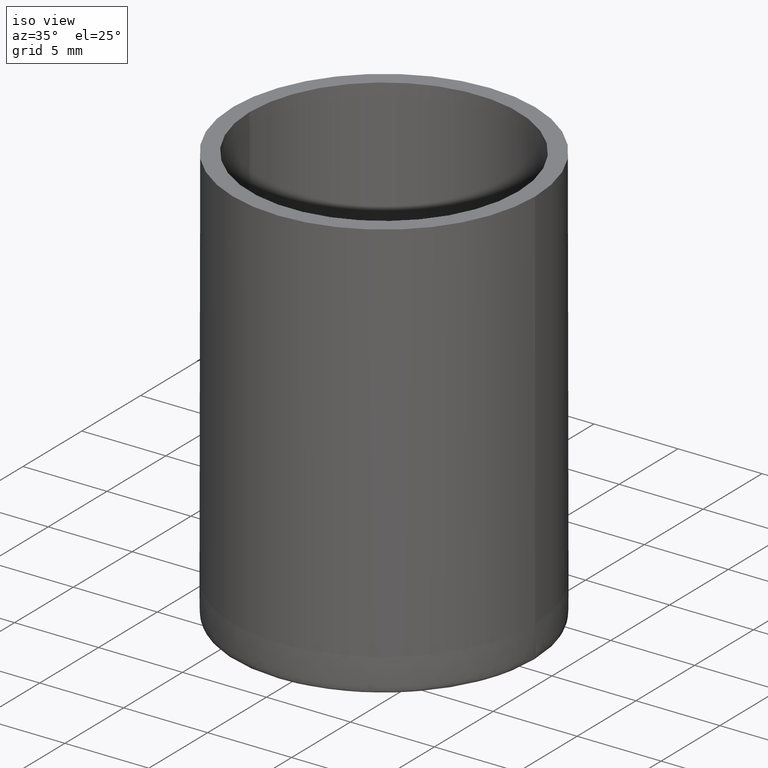
[diagram: clean part render]
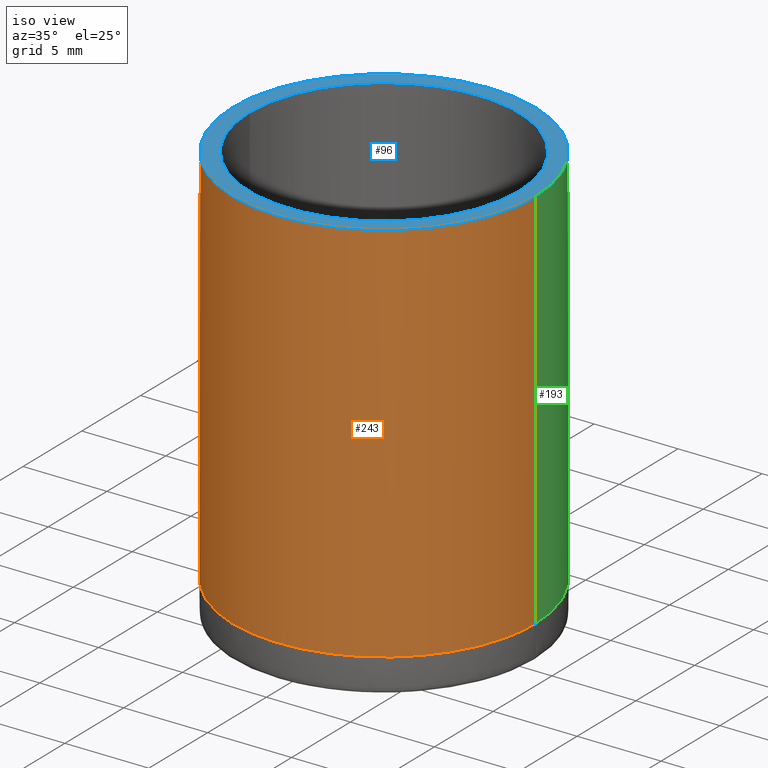
[diagram: same view with three faces highlighted in distinct colors, each labeled with its STEP entity id]
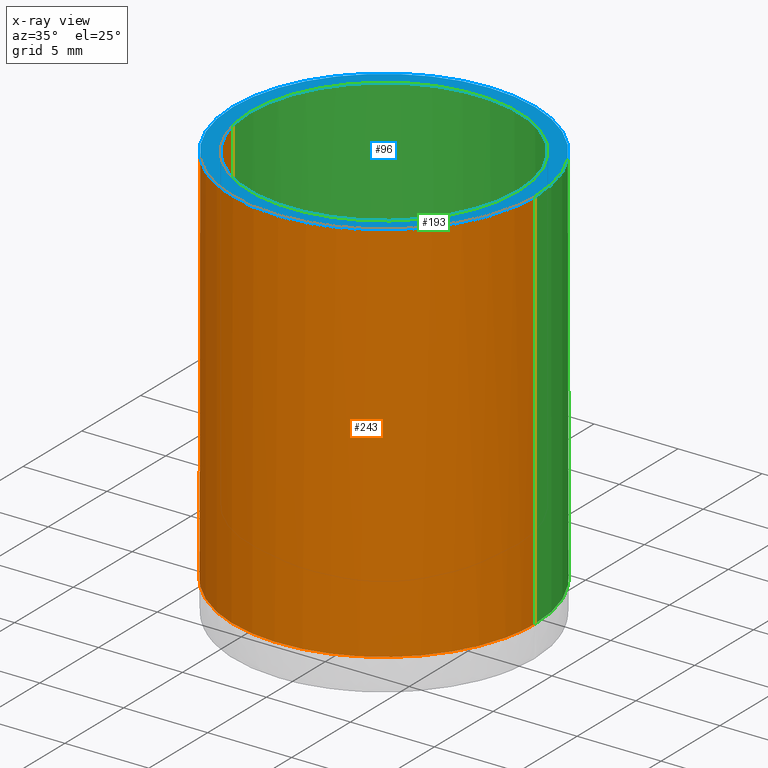
[diagram: x-ray of the same camera — body ghosted, the three highlighted faces saturated]
A machine part, iso view with three faces highlighted in distinct colors.
The next image is the same camera in x-ray (body ghosted, the three faces saturated) — at least one of them is partly hidden behind the body in this view.
Their STEP definitions:

[orange] entity #243 — the highlighted cylindrical surface (partial cylindrical patch) has radius 9 mm, axis along (-0, -0, -1).
#82 = CARTESIAN_POINT ( 'NONE',  ( 9.000000000000000000, 5.510910596163088600E-016, 2.000000000000001800 ) ) ;
#88 = CARTESIAN_POINT ( 'NONE',  ( -1.178097245096173100, -9.000000000000000000, 2.000000000000001800 ) ) ;
#90 = CARTESIAN_POINT ( 'NONE',  ( -4.532570823338096100, -7.864077495188321400, 2.000000000000001800 ) ) ;
#122 = VERTEX_POINT ( 'NONE', #82 ) ;
#124 = EDGE_CURVE ( 'NONE', #371, #455, #169, .T. ) ;
#137 = CARTESIAN_POINT ( 'NONE',  ( 7.197001581583623200, -5.530920479774233700, 2.000000000000002200 ) ) ;
#140 = CARTESIAN_POINT ( 'NONE',  ( 9.000000000000000000, -1.178097245096174200, 2.000000000000001800 ) ) ;
#169 = LINE ( 'NONE', #273, #533 ) ;
#180 = CARTESIAN_POINT ( 'NONE',  ( -8.765754090014841200, -2.355730959233521800, 2.000000000000002200 ) ) ;
#187 = DIRECTION ( 'NONE',  ( 1.000000000000000000, 0.0000000000000000000, 0.0000000000000000000 ) ) ;
#196 = CARTESIAN_POINT ( 'NONE',  ( -9.000000000000000000, 5.421010862427522200E-016, 2.000000000000001800 ) ) ;
#215 = CARTESIAN_POINT ( 'NONE',  ( 0.0000000000000000000, 0.0000000000000000000, 25.00000000000000000 ) ) ;
#220 = EDGE_CURVE ( 'NONE', #371, #613, #385, .T. ) ;
#223 = CARTESIAN_POINT ( 'NONE',  ( 0.0000000000000000000, 0.0000000000000000000, 25.00000000000000000 ) ) ;
#233 = CARTESIAN_POINT ( 'NONE',  ( -2.355730959233523200, -8.765754090014834100, 2.000000000000001300 ) ) ;
#239 = ORIENTED_EDGE ( 'NONE', *, *, #349, .T. ) ;
#242 = DIRECTION ( 'NONE',  ( -0.0000000000000000000, -0.0000000000000000000, -1.000000000000000000 ) ) ;
#243 = ADVANCED_FACE ( 'NONE', ( #446 ), #397, .T. ) ;
#267 = B_SPLINE_CURVE_WITH_KNOTS ( 'NONE', 3,
 ( #412, #529, #180, #468, #527, #562, #90, #233, #88, #568, #410, #283, #611, #137, #608, #417, #140, #327 ),
 .UNSPECIFIED., .F., .F.,
 ( 4, 2, 2, 2, 2, 2, 2, 2, 4 ),
 ( 0.5000000000000000000, 0.5625000000000000000, 0.6249999999999998900, 0.6874999999999998900, 0.7499999999999998900, 0.8124999999999998900, 0.8749999999999998900, 0.9375000000000000000, 1.000000000000000000 ),
 .UNSPECIFIED. ) ;
#273 = CARTESIAN_POINT ( 'NONE',  ( -9.000000000000000000, 0.0000000000000000000, 25.00000000000000000 ) ) ;
#275 = CARTESIAN_POINT ( 'NONE',  ( -9.000000000000000000, 0.0000000000000000000, 25.00000000000000000 ) ) ;
#283 = CARTESIAN_POINT ( 'NONE',  ( 4.532570823338094400, -7.864077495188321400, 2.000000000000001800 ) ) ;
#327 = CARTESIAN_POINT ( 'NONE',  ( 9.000000000000000000, 5.510910596163088600E-016, 2.000000000000001800 ) ) ;
#335 = AXIS2_PLACEMENT_3D ( 'NONE', #215, #360, #187 ) ;
#346 = VECTOR ( 'NONE', #242, 1000.000000000000000 ) ;
#349 = EDGE_CURVE ( 'NONE', #455, #122, #267, .T. ) ;
#360 = DIRECTION ( 'NONE',  ( 0.0000000000000000000, 0.0000000000000000000, 1.000000000000000000 ) ) ;
#371 = VERTEX_POINT ( 'NONE', #275 ) ;
#385 = CIRCLE ( 'NONE', #335, 9.000000000000000000 ) ;
#397 = CYLINDRICAL_SURFACE ( 'NONE', #400, 9.000000000000000000 ) ;
#400 = AXIS2_PLACEMENT_3D ( 'NONE', #223, #604, #408 ) ;
#408 = DIRECTION ( 'NONE',  ( -1.000000000000000000, 0.0000000000000000000, 0.0000000000000000000 ) ) ;
#409 = DIRECTION ( 'NONE',  ( -0.0000000000000000000, -0.0000000000000000000, -1.000000000000000000 ) ) ;
#410 = CARTESIAN_POINT ( 'NONE',  ( 2.355730959233521800, -8.765754090014839400, 2.000000000000001800 ) ) ;
#412 = CARTESIAN_POINT ( 'NONE',  ( -9.000000000000000000, 5.421010862427522200E-016, 2.000000000000001800 ) ) ;
#417 = CARTESIAN_POINT ( 'NONE',  ( 8.765754090014835900, -2.355730959233524900, 2.000000000000001300 ) ) ;
#430 = EDGE_LOOP ( 'NONE', ( #607, #598, #457, #239 ) ) ;
#443 = CARTESIAN_POINT ( 'NONE',  ( 9.000000000000000000, 1.102182119232617700E-015, 25.00000000000000000 ) ) ;
#446 = FACE_OUTER_BOUND ( 'NONE', #430, .T. ) ;
#455 = VERTEX_POINT ( 'NONE', #196 ) ;
#457 = ORIENTED_EDGE ( 'NONE', *, *, #124, .T. ) ;
#468 = CARTESIAN_POINT ( 'NONE',  ( -7.864077495188323200, -4.532570823338094400, 2.000000000000002200 ) ) ;
#473 = EDGE_CURVE ( 'NONE', #613, #122, #591, .T. ) ;
#527 = CARTESIAN_POINT ( 'NONE',  ( -7.197001581583623200, -5.530920479774233700, 2.000000000000002200 ) ) ;
#529 = CARTESIAN_POINT ( 'NONE',  ( -9.000000000000001800, -1.178097245096172600, 2.000000000000001800 ) ) ;
#531 = CARTESIAN_POINT ( 'NONE',  ( 9.000000000000000000, 1.102182119232617700E-015, 25.00000000000000000 ) ) ;
#533 = VECTOR ( 'NONE', #409, 1000.000000000000000 ) ;
#562 = CARTESIAN_POINT ( 'NONE',  ( -5.530920479774233700, -7.197001581583620600, 2.000000000000001300 ) ) ;
#568 = CARTESIAN_POINT ( 'NONE',  ( 1.178097245096170900, -8.999999999999998200, 2.000000000000001300 ) ) ;
#591 = LINE ( 'NONE', #531, #346 ) ;
#598 = ORIENTED_EDGE ( 'NONE', *, *, #220, .F. ) ;
#604 = DIRECTION ( 'NONE',  ( -0.0000000000000000000, -0.0000000000000000000, -1.000000000000000000 ) ) ;
#607 = ORIENTED_EDGE ( 'NONE', *, *, #473, .F. ) ;
#608 = CARTESIAN_POINT ( 'NONE',  ( 7.864077495188316100, -4.532570823338099700, 2.000000000000001800 ) ) ;
#611 = CARTESIAN_POINT ( 'NONE',  ( 5.530920479774233700, -7.197001581583622400, 2.000000000000001800 ) ) ;
#613 = VERTEX_POINT ( 'NONE', #443 ) ;

[blue] entity #96 — the highlighted planar face has unit normal (0, 0, 1).
#8 = AXIS2_PLACEMENT_3D ( 'NONE', #466, #321, #520 ) ;
#14 = EDGE_LOOP ( 'NONE', ( #491, #141 ) ) ;
#34 = DIRECTION ( 'NONE',  ( 1.000000000000000000, 0.0000000000000000000, -0.0000000000000000000 ) ) ;
#96 = ADVANCED_FACE ( 'NONE', ( #270, #148 ), #227, .T. ) ;
#107 = CIRCLE ( 'NONE', #588, 8.000000000000000000 ) ;
#115 = EDGE_LOOP ( 'NONE', ( #347, #558 ) ) ;
#126 = DIRECTION ( 'NONE',  ( 1.000000000000000000, 0.0000000000000000000, 0.0000000000000000000 ) ) ;
#141 = ORIENTED_EDGE ( 'NONE', *, *, #436, .T. ) ;
#148 = FACE_BOUND ( 'NONE', #115, .T. ) ;
#155 = CIRCLE ( 'NONE', #510, 9.000000000000000000 ) ;
#161 = VERTEX_POINT ( 'NONE', #407 ) ;
#187 = DIRECTION ( 'NONE',  ( 1.000000000000000000, 0.0000000000000000000, 0.0000000000000000000 ) ) ;
#205 = EDGE_CURVE ( 'NONE', #161, #218, #107, .T. ) ;
#215 = CARTESIAN_POINT ( 'NONE',  ( 0.0000000000000000000, 0.0000000000000000000, 25.00000000000000000 ) ) ;
#218 = VERTEX_POINT ( 'NONE', #226 ) ;
#220 = EDGE_CURVE ( 'NONE', #371, #613, #385, .T. ) ;
#226 = CARTESIAN_POINT ( 'NONE',  ( -8.000000000000000000, 0.0000000000000000000, 25.00000000000000000 ) ) ;
#227 = PLANE ( 'NONE',  #502 ) ;
#240 = CARTESIAN_POINT ( 'NONE',  ( 0.0000000000000000000, 0.0000000000000000000, 25.00000000000000000 ) ) ;
#270 = FACE_OUTER_BOUND ( 'NONE', #14, .T. ) ;
#275 = CARTESIAN_POINT ( 'NONE',  ( -9.000000000000000000, 0.0000000000000000000, 25.00000000000000000 ) ) ;
#285 = DIRECTION ( 'NONE',  ( 0.0000000000000000000, 0.0000000000000000000, 1.000000000000000000 ) ) ;
#319 = DIRECTION ( 'NONE',  ( 0.0000000000000000000, 0.0000000000000000000, 1.000000000000000000 ) ) ;
#321 = DIRECTION ( 'NONE',  ( -0.0000000000000000000, -0.0000000000000000000, -1.000000000000000000 ) ) ;
#330 = CIRCLE ( 'NONE', #8, 8.000000000000000000 ) ;
#335 = AXIS2_PLACEMENT_3D ( 'NONE', #215, #360, #187 ) ;
#347 = ORIENTED_EDGE ( 'NONE', *, *, #373, .T. ) ;
#360 = DIRECTION ( 'NONE',  ( 0.0000000000000000000, 0.0000000000000000000, 1.000000000000000000 ) ) ;
#371 = VERTEX_POINT ( 'NONE', #275 ) ;
#373 = EDGE_CURVE ( 'NONE', #218, #161, #330, .T. ) ;
#385 = CIRCLE ( 'NONE', #335, 9.000000000000000000 ) ;
#403 = CARTESIAN_POINT ( 'NONE',  ( 4.214760313489563600E-017, 0.0000000000000000000, 25.00000000000000000 ) ) ;
#407 = CARTESIAN_POINT ( 'NONE',  ( 8.000000000000000000, 9.797174393178825700E-016, 25.00000000000000000 ) ) ;
#436 = EDGE_CURVE ( 'NONE', #613, #371, #155, .T. ) ;
#443 = CARTESIAN_POINT ( 'NONE',  ( 9.000000000000000000, 1.102182119232617700E-015, 25.00000000000000000 ) ) ;
#462 = CARTESIAN_POINT ( 'NONE',  ( 0.0000000000000000000, 0.0000000000000000000, 25.00000000000000000 ) ) ;
#466 = CARTESIAN_POINT ( 'NONE',  ( 4.214760313489563600E-017, 0.0000000000000000000, 25.00000000000000000 ) ) ;
#491 = ORIENTED_EDGE ( 'NONE', *, *, #220, .T. ) ;
#502 = AXIS2_PLACEMENT_3D ( 'NONE', #462, #319, #34 ) ;
#510 = AXIS2_PLACEMENT_3D ( 'NONE', #240, #285, #571 ) ;
#514 = DIRECTION ( 'NONE',  ( -0.0000000000000000000, -0.0000000000000000000, -1.000000000000000000 ) ) ;
#520 = DIRECTION ( 'NONE',  ( 1.000000000000000000, 0.0000000000000000000, 0.0000000000000000000 ) ) ;
#558 = ORIENTED_EDGE ( 'NONE', *, *, #205, .T. ) ;
#571 = DIRECTION ( 'NONE',  ( 1.000000000000000000, 0.0000000000000000000, 0.0000000000000000000 ) ) ;
#588 = AXIS2_PLACEMENT_3D ( 'NONE', #403, #514, #126 ) ;
#613 = VERTEX_POINT ( 'NONE', #443 ) ;

[green] entity #193 — the highlighted cylindrical surface (partial cylindrical patch) has radius 9 mm, axis along (-0, -0, -1).
#12 = CARTESIAN_POINT ( 'NONE',  ( 7.864077495188316100, 4.532570823338097900, 2.000000000000001800 ) ) ;
#50 = CARTESIAN_POINT ( 'NONE',  ( 5.530920479774233700, 7.197001581583620600, 2.000000000000001800 ) ) ;
#55 = ORIENTED_EDGE ( 'NONE', *, *, #436, .F. ) ;
#79 = ORIENTED_EDGE ( 'NONE', *, *, #473, .T. ) ;
#82 = CARTESIAN_POINT ( 'NONE',  ( 9.000000000000000000, 5.510910596163088600E-016, 2.000000000000001800 ) ) ;
#92 = CARTESIAN_POINT ( 'NONE',  ( -8.999999999999998200, 1.178097245096171100, 2.000000000000001800 ) ) ;
#108 = EDGE_LOOP ( 'NONE', ( #55, #79, #191, #526 ) ) ;
#122 = VERTEX_POINT ( 'NONE', #82 ) ;
#124 = EDGE_CURVE ( 'NONE', #371, #455, #169, .T. ) ;
#146 = CARTESIAN_POINT ( 'NONE',  ( 2.355730959233521400, 8.765754090014837600, 2.000000000000001300 ) ) ;
#155 = CIRCLE ( 'NONE', #510, 9.000000000000000000 ) ;
#169 = LINE ( 'NONE', #273, #533 ) ;
#178 = B_SPLINE_CURVE_WITH_KNOTS ( 'NONE', 3,
 ( #615, #325, #579, #12, #194, #50, #374, #146, #487, #481, #248, #190, #376, #484, #572, #576, #92, #532 ),
 .UNSPECIFIED., .F., .F.,
 ( 4, 2, 2, 2, 2, 2, 2, 2, 4 ),
 ( 0.0000000000000000000, 0.06250000000000005600, 0.1250000000000001100, 0.1875000000000001100, 0.2500000000000001100, 0.3125000000000001100, 0.3750000000000001100, 0.4375000000000000600, 0.5000000000000000000 ),
 .UNSPECIFIED. ) ;
#184 = FACE_OUTER_BOUND ( 'NONE', #108, .T. ) ;
#190 = CARTESIAN_POINT ( 'NONE',  ( -4.532570823338096100, 7.864077495188319700, 2.000000000000001300 ) ) ;
#191 = ORIENTED_EDGE ( 'NONE', *, *, #451, .T. ) ;
#193 = ADVANCED_FACE ( 'NONE', ( #184 ), #315, .T. ) ;
#194 = CARTESIAN_POINT ( 'NONE',  ( 7.197001581583618800, 5.530920479774234600, 2.000000000000001800 ) ) ;
#196 = CARTESIAN_POINT ( 'NONE',  ( -9.000000000000000000, 5.421010862427522200E-016, 2.000000000000001800 ) ) ;
#198 = AXIS2_PLACEMENT_3D ( 'NONE', #560, #465, #317 ) ;
#240 = CARTESIAN_POINT ( 'NONE',  ( 0.0000000000000000000, 0.0000000000000000000, 25.00000000000000000 ) ) ;
#242 = DIRECTION ( 'NONE',  ( -0.0000000000000000000, -0.0000000000000000000, -1.000000000000000000 ) ) ;
#248 = CARTESIAN_POINT ( 'NONE',  ( -2.355730959233523600, 8.765754090014837600, 2.000000000000001800 ) ) ;
#273 = CARTESIAN_POINT ( 'NONE',  ( -9.000000000000000000, 0.0000000000000000000, 25.00000000000000000 ) ) ;
#275 = CARTESIAN_POINT ( 'NONE',  ( -9.000000000000000000, 0.0000000000000000000, 25.00000000000000000 ) ) ;
#285 = DIRECTION ( 'NONE',  ( 0.0000000000000000000, 0.0000000000000000000, 1.000000000000000000 ) ) ;
#315 = CYLINDRICAL_SURFACE ( 'NONE', #198, 9.000000000000000000 ) ;
#317 = DIRECTION ( 'NONE',  ( -1.000000000000000000, 0.0000000000000000000, 0.0000000000000000000 ) ) ;
#325 = CARTESIAN_POINT ( 'NONE',  ( 9.000000000000001800, 1.178097245096173800, 2.000000000000002700 ) ) ;
#346 = VECTOR ( 'NONE', #242, 1000.000000000000000 ) ;
#371 = VERTEX_POINT ( 'NONE', #275 ) ;
#374 = CARTESIAN_POINT ( 'NONE',  ( 4.532570823338096100, 7.864077495188323200, 2.000000000000002200 ) ) ;
#376 = CARTESIAN_POINT ( 'NONE',  ( -5.530920479774233700, 7.197001581583620600, 2.000000000000001800 ) ) ;
#409 = DIRECTION ( 'NONE',  ( -0.0000000000000000000, -0.0000000000000000000, -1.000000000000000000 ) ) ;
#436 = EDGE_CURVE ( 'NONE', #613, #371, #155, .T. ) ;
#443 = CARTESIAN_POINT ( 'NONE',  ( 9.000000000000000000, 1.102182119232617700E-015, 25.00000000000000000 ) ) ;
#451 = EDGE_CURVE ( 'NONE', #122, #455, #178, .T. ) ;
#455 = VERTEX_POINT ( 'NONE', #196 ) ;
#465 = DIRECTION ( 'NONE',  ( -0.0000000000000000000, -0.0000000000000000000, -1.000000000000000000 ) ) ;
#473 = EDGE_CURVE ( 'NONE', #613, #122, #591, .T. ) ;
#481 = CARTESIAN_POINT ( 'NONE',  ( -1.178097245096172600, 9.000000000000000000, 2.000000000000001300 ) ) ;
#484 = CARTESIAN_POINT ( 'NONE',  ( -7.197001581583621500, 5.530920479774234600, 2.000000000000002200 ) ) ;
#487 = CARTESIAN_POINT ( 'NONE',  ( 1.178097245096171500, 9.000000000000000000, 2.000000000000001800 ) ) ;
#510 = AXIS2_PLACEMENT_3D ( 'NONE', #240, #285, #571 ) ;
#526 = ORIENTED_EDGE ( 'NONE', *, *, #124, .F. ) ;
#531 = CARTESIAN_POINT ( 'NONE',  ( 9.000000000000000000, 1.102182119232617700E-015, 25.00000000000000000 ) ) ;
#532 = CARTESIAN_POINT ( 'NONE',  ( -9.000000000000000000, 5.421010862427522200E-016, 2.000000000000001800 ) ) ;
#533 = VECTOR ( 'NONE', #409, 1000.000000000000000 ) ;
#560 = CARTESIAN_POINT ( 'NONE',  ( 0.0000000000000000000, 0.0000000000000000000, 25.00000000000000000 ) ) ;
#571 = DIRECTION ( 'NONE',  ( 1.000000000000000000, 0.0000000000000000000, 0.0000000000000000000 ) ) ;
#572 = CARTESIAN_POINT ( 'NONE',  ( -7.864077495188321400, 4.532570823338093500, 2.000000000000001800 ) ) ;
#576 = CARTESIAN_POINT ( 'NONE',  ( -8.765754090014841200, 2.355730959233523200, 2.000000000000002700 ) ) ;
#579 = CARTESIAN_POINT ( 'NONE',  ( 8.765754090014837600, 2.355730959233526700, 2.000000000000001800 ) ) ;
#591 = LINE ( 'NONE', #531, #346 ) ;
#613 = VERTEX_POINT ( 'NONE', #443 ) ;
#615 = CARTESIAN_POINT ( 'NONE',  ( 9.000000000000000000, 5.510910596163088600E-016, 2.000000000000001800 ) ) ;